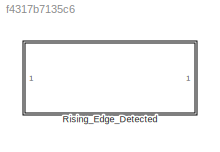
MODEL slx_f4317b7135c6
KIND library
CONFIG AbsTol = auto
CONFIG FixedStep = auto
CONFIG MaxStep = auto
CONFIG MinStep = auto
CONFIG RelTol = 1e-3
CONFIG SampleTimeConstraint = Unconstrained
CONFIG Solver = ode45
CONFIG SolverMode = Auto
CONFIG SolverName = ode45
CONFIG StartTime = 0.0
CONFIG StopTime = 10.0
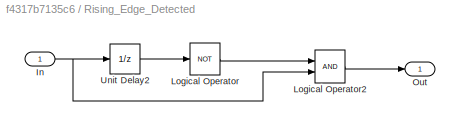
BLOCK [SubSystem] Rising_Edge_Detected
  Ports = [1, 1]
  RequestExecContextInheritance = off
  Variant = off
BLOCK [Inport] Rising_Edge_Detected/In
  IconDisplay = Port number
BLOCK [Logic] Rising_Edge_Detected/Logical Operator
  AllPortsSameDT = off
  Operator = NOT
  OutDataTypeStr = boolean
  Ports = [1, 1]
BLOCK [Logic] Rising_Edge_Detected/Logical Operator2
  AllPortsSameDT = off
  OutDataTypeStr = boolean
  Ports = [2, 1]
BLOCK [Outport] Rising_Edge_Detected/Out
  IconDisplay = Port number
BLOCK [UnitDelay] Rising_Edge_Detected/Unit Delay2
  AttributesFormatString = <Init = %<InitialCondition>>
  InputProcessing = Elements as channels (sample based)
  SampleTime = -1
NET Rising_Edge_Detected/In:1 -> Rising_Edge_Detected/Logical Operator2:2, Rising_Edge_Detected/Unit Delay2:1
LINE Rising_Edge_Detected/Logical Operator2:1 -> Rising_Edge_Detected/Out:1
LINE Rising_Edge_Detected/Logical Operator:1 -> Rising_Edge_Detected/Logical Operator2:1
LINE Rising_Edge_Detected/Unit Delay2:1 -> Rising_Edge_Detected/Logical Operator:1
note: NET lines group one-source signal fan-out (src -> all destinations, sorted); 1:1 wires keep LINE
